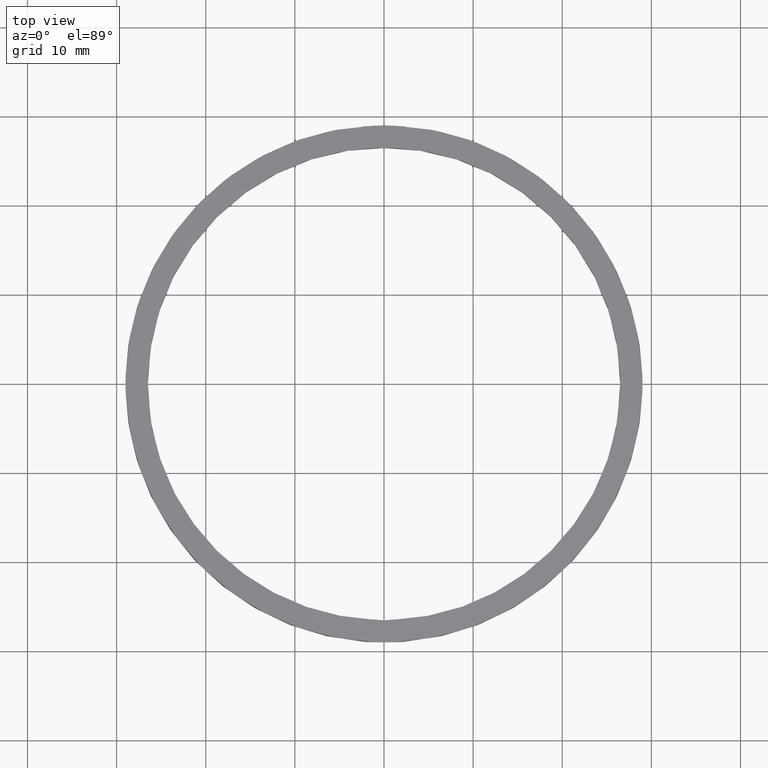
[diagram: clean part render]
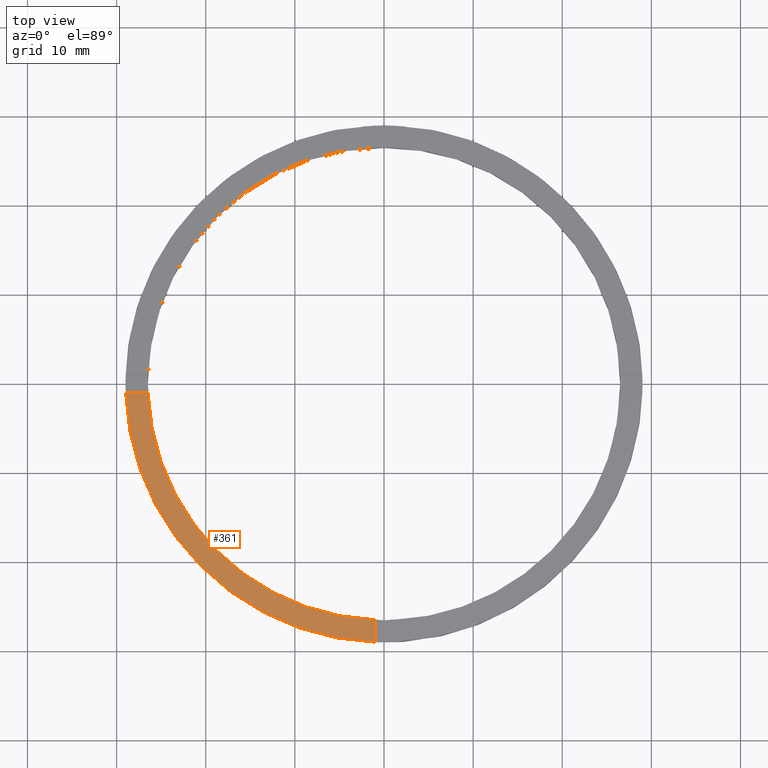
[diagram: same view with one face highlighted and labeled with its STEP entity id]
A machine part, top view. The second image highlights one B-rep face of the part: STEP entity #361.
In plain terms, the highlighted planar face has unit normal (0, 0, 1).
Its self-contained STEP definition (entity closure, byte-faithful):
#9 = DIRECTION ( 'NONE',  ( 1.301042606982605567E-16, -1.000000000000000000, 0.000000000000000000 ) ) ;
#47 = CARTESIAN_POINT ( 'NONE',  ( 0.000000000000000000, 0.000000000000000000, 2.500000000000000000 ) ) ;
#54 = DIRECTION ( 'NONE',  ( 0.000000000000000000, 0.000000000000000000, 1.000000000000000000 ) ) ;
#84 = ORIENTED_EDGE ( 'NONE', *, *, #249, .F. ) ;
#91 = ORIENTED_EDGE ( 'NONE', *, *, #776, .T. ) ;
#172 = VECTOR ( 'NONE', #9, 1000.000000000000000 ) ;
#175 = VECTOR ( 'NONE', #675, 1000.000000000000000 ) ;
#185 = EDGE_CURVE ( 'NONE', #461, #683, #654, .T. ) ;
#198 = CARTESIAN_POINT ( 'NONE',  ( -19.00000000000018829, -1.000000000000025535, 2.500000000000000000 ) ) ;
#211 = AXIS2_PLACEMENT_3D ( 'NONE', #47, #54, #656 ) ;
#232 = CARTESIAN_POINT ( 'NONE',  ( 0.000000000000000000, 0.000000000000000000, 2.500000000000000000 ) ) ;
#233 = PLANE ( 'NONE',  #211 ) ;
#238 = AXIS2_PLACEMENT_3D ( 'NONE', #232, #774, #278 ) ;
#249 = EDGE_CURVE ( 'NONE', #683, #305, #416, .T. ) ;
#260 = CARTESIAN_POINT ( 'NONE',  ( -1.000000000000159872, -26.48112535373071807, 2.500000000000000000 ) ) ;
#278 = DIRECTION ( 'NONE',  ( 1.000000000000000000, 0.000000000000000000, 0.000000000000000000 ) ) ;
#305 = VERTEX_POINT ( 'NONE', #407 ) ;
#336 = CARTESIAN_POINT ( 'NONE',  ( 0.000000000000000000, 0.000000000000000000, 2.500000000000000000 ) ) ;
#349 = DIRECTION ( 'NONE',  ( 0.000000000000000000, 0.000000000000000000, 1.000000000000000000 ) ) ;
#356 = ORIENTED_EDGE ( 'NONE', *, *, #185, .F. ) ;
#361 = ADVANCED_FACE ( 'NONE', ( #418 ), #233, .T. ) ;
#407 = CARTESIAN_POINT ( 'NONE',  ( -1.000000000000159650, -28.98275349237887255, 2.500000000000000000 ) ) ;
#416 = LINE ( 'NONE', #698, #172 ) ;
#418 = FACE_OUTER_BOUND ( 'NONE', #587, .T. ) ;
#435 = LINE ( 'NONE', #198, #175 ) ;
#455 = DIRECTION ( 'NONE',  ( 1.000000000000000000, 0.000000000000000000, 0.000000000000000000 ) ) ;
#461 = VERTEX_POINT ( 'NONE', #779 ) ;
#487 = CARTESIAN_POINT ( 'NONE',  ( -28.98275349237887610, -1.000000000000027311, 2.500000000000000000 ) ) ;
#529 = EDGE_CURVE ( 'NONE', #563, #461, #435, .T. ) ;
#563 = VERTEX_POINT ( 'NONE', #487 ) ;
#584 = ORIENTED_EDGE ( 'NONE', *, *, #529, .F. ) ;
#587 = EDGE_LOOP ( 'NONE', ( #84, #356, #584, #91 ) ) ;
#624 = CIRCLE ( 'NONE', #719, 29.00000000000000000 ) ;
#654 = CIRCLE ( 'NONE', #238, 26.50000000000000355 ) ;
#656 = DIRECTION ( 'NONE',  ( 1.000000000000000000, 0.000000000000000000, -0.000000000000000000 ) ) ;
#675 = DIRECTION ( 'NONE',  ( 1.000000000000000000, 1.734723475976807341E-16, -0.000000000000000000 ) ) ;
#683 = VERTEX_POINT ( 'NONE', #260 ) ;
#698 = CARTESIAN_POINT ( 'NONE',  ( -1.000000000000160982, -19.00000000000018474, 2.500000000000000000 ) ) ;
#719 = AXIS2_PLACEMENT_3D ( 'NONE', #336, #349, #455 ) ;
#774 = DIRECTION ( 'NONE',  ( 0.000000000000000000, 0.000000000000000000, 1.000000000000000000 ) ) ;
#776 = EDGE_CURVE ( 'NONE', #563, #305, #624, .T. ) ;
#779 = CARTESIAN_POINT ( 'NONE',  ( -26.48112535373072163, -1.000000000000026867, 2.500000000000000000 ) ) ;